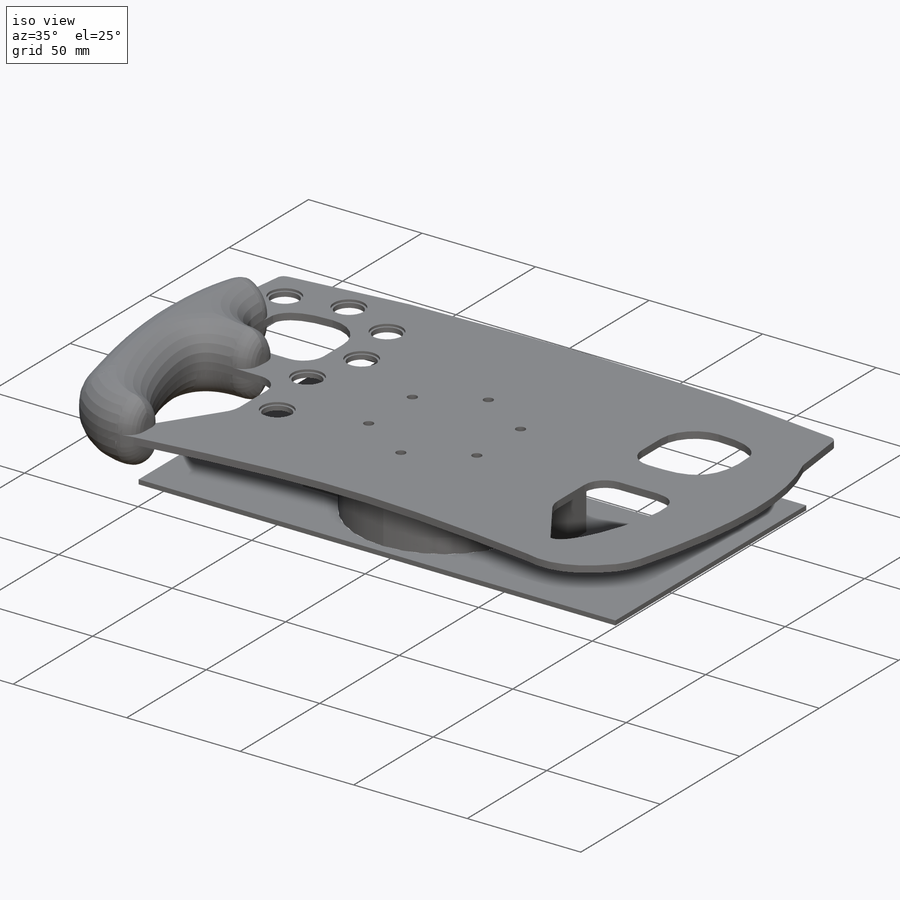
[diagram: iso view]
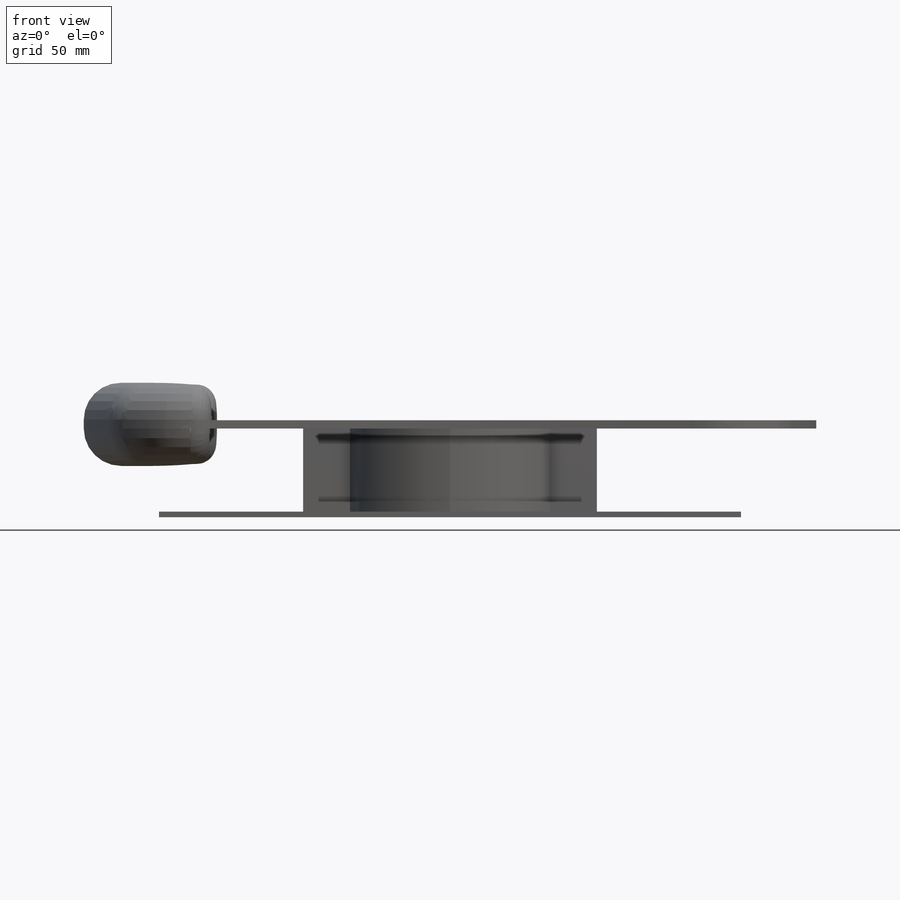
[diagram: front view]
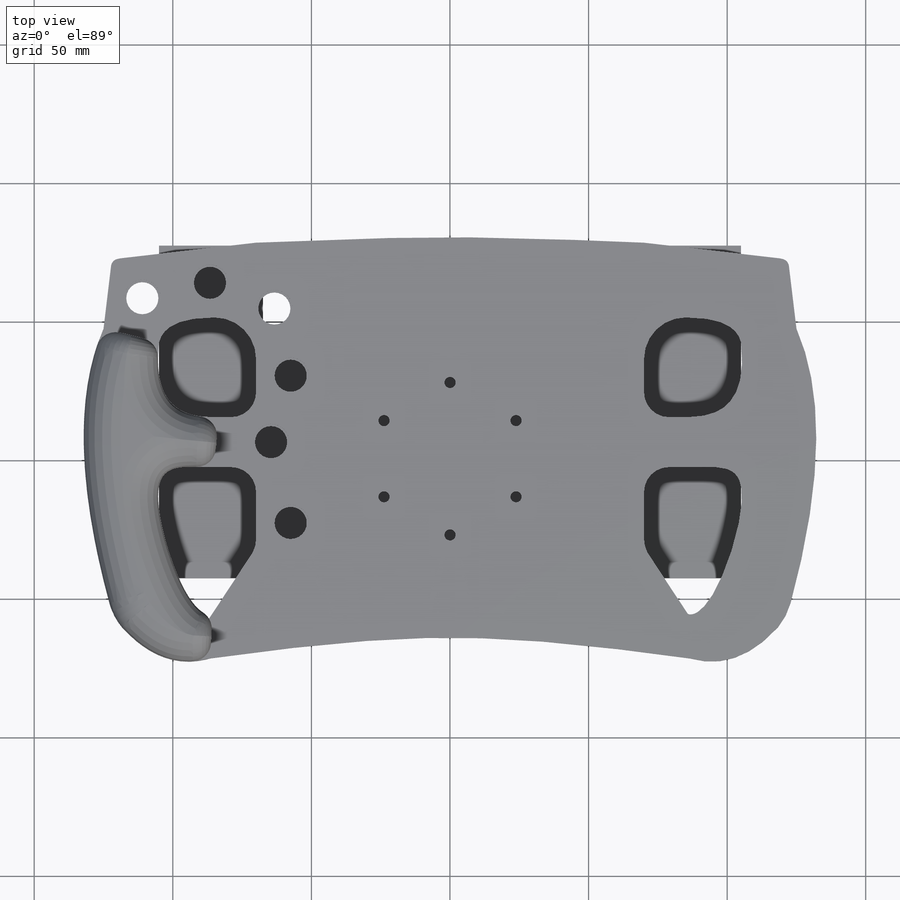
[diagram: top view]
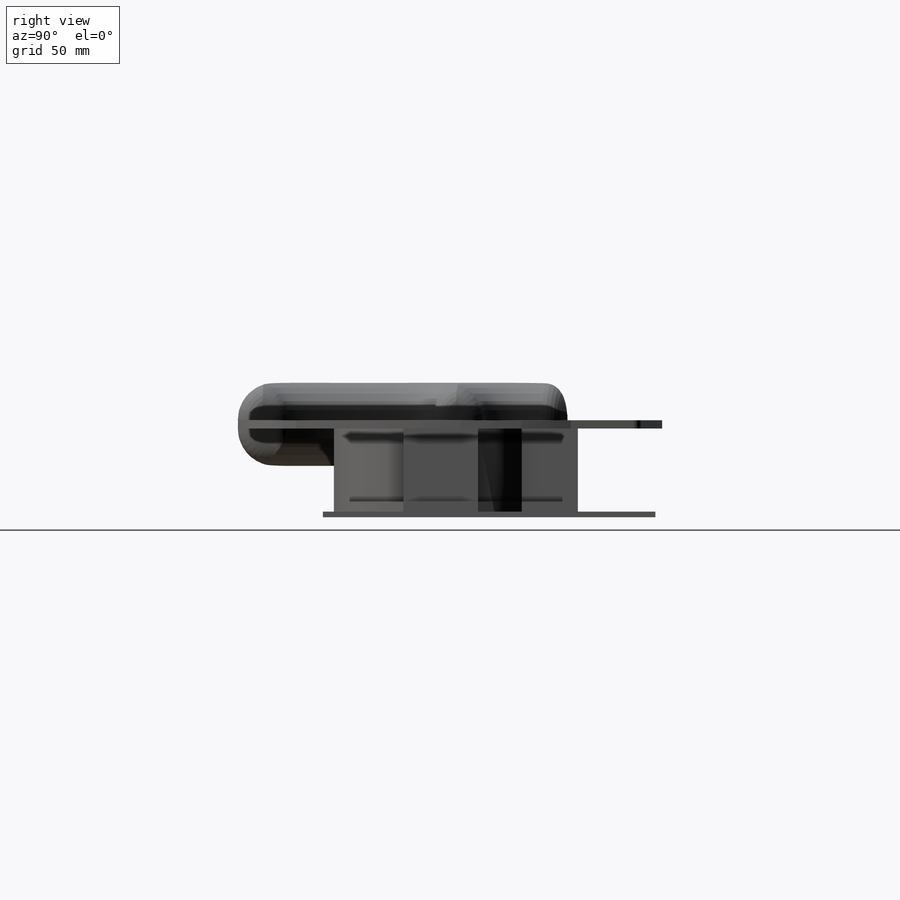
[diagram: right view]
SOLIDWORKS PART (.sldprt)
format: sldprt  version: not decoded by parser v0  size: 1,092,608 bytes
history: native  units: mm
features: sketch x11, extrude x5, fillet x5, cut_extrude x3, material x1 (+13 scaffold rows collapsed)
feature tree (38):
  scaffold x13  (default folders/planes/origin — collapsed)
  material  "Material <not specified>"
  sketch  "Sketch1"  dims[c1.D5=77.0mm c1.D1=27.0mm c1.D2=~99.463235mm c1.D3=27.0mm c2.D2=106.0mm c2.D3=53.0mm c2.D4=13.5mm c2.D6=49.5mm c2.D7=50.0mm c2.D8=25.0mm c2.D9=22.0mm]
  extrude  "Boss-Extrude1"  Depth=30mm
  sketch  "Sketch2"  dims[c1.D5=38.5mm c1.D1=210.0mm c1.D2=105.0mm c1.D3=120.0mm c1.D4=42.5mm c2.D5=135.0mm c2.D6=37.5mm c2.D7=40.0mm]
  extrude  "Boss-Extrude2"  Depth=2mm
  sketch  "Sketch3"  dims[D3=4.0mm D1=27.5mm D2=0.0mm D4=6.0]
  cut_extrude  "Cut-Extrude1"  Depth=2mm
  sketch  "Sketch4"  dims[c1.D19=15.0mm c1.D25=9.0mm c1.D30=9.0mm c2.D25=9.0mm c2.D32=9.0mm c2.D49=~5.831772mm c2.D60=5.25mm c2.D62=~141.397225mm c2.D1=70.0mm c2.D2=15.0mm c2.D3=36.0mm c2.D4=35.0mm c2.D5=18.0mm c2.D6=29.0mm c2.D7=70.0mm c2.D8=29.0mm c3.D8=90.0deg c4.D8=38.0mm c4.D9=25.0mm c4.D10=16.5mm c4.D11=52.0mm c4.D12=6.0mm c4.D13=70.0mm c4.D14=25.0mm c4.D15=3.0mm c4.D16=78.0mm c4.D17=15.0mm c4.D18=15.0mm c4.D20=9.0mm c4.D21=2.25mm c4.D22=~2.479391mm c4.D23=9.0mm c4.D24=9.0mm c4.D26=4.5mm c4.D27=13.0mm c4.D28=29.0mm c4.D29=27.0mm c5.D23=9.0mm c5.D24=9.0mm c5.D26=4.5mm c5.D27=13.0mm c5.D28=29.0mm c5.D30=9.0mm c5.D31=9.0mm c5.D33=6.0mm c5.D34=14.0mm c5.D35=27.0mm c5.D36=5.5mm c5.D37=23.0mm c5.D38=28.0mm c5.D39=~36.757285mm c6.D38=28.0mm c6.D39=20.0mm c6.D40=46.0mm c6.D41=13.0mm c6.D42=54.0mm c6.D43=8.0mm c6.D44=0.0mm c6.D45=~7.407964mm c6.D46=0.0mm c6.D47=~0.637161mm c7.D45=1.5mm c7.D47=3.0mm c7.D48=3.0mm c8.D47=3.0mm c8.D48=3.0mm c8.D49=104.0mm c8.D50=36.25mm c8.D51=15.875mm c8.D52=3.5mm c8.D53=15.0mm c8.D54=5.5mm c8.D55=19.0mm c8.D56=5.0mm c8.D57=5.0mm c8.D58=3.0mm c8.D59=3.0mm c9.D58=3.0mm c9.D60=~2.963289mm c10.D58=3.0mm c10.D59=3.0mm c10.D60=~4.807388mm c10.D61=81.0mm c10.D63=70.0mm c10.D64=12.0mm c10.D65=4.5mm c10.D66=86.5mm c10.D35=~166.084568deg]
  extrude  "Boss-Extrude3"  Depth=3mm
  sketch  "Sketch6"  dims[c1.D2=11.6mm c1.D3=11.6mm c1.D4=11.6mm c1.D5=11.6mm c1.D6=11.6mm c1.D18=11.6mm c1.D1=15.0mm c1.D7=16.0mm c1.D8=6.0mm c1.D9=25.0mm c1.D10=25.0mm c1.D11=25.0mm c1.D12=25.0mm c1.D13=10.0mm c2.D12=17.0mm c2.D13=17.0mm c2.D14=25.0mm c2.D15=~25.281454mm c2.D16=~26.486349mm c3.D15=25.0mm c3.D10=23.5mm c3.D16=~23.260398mm c4.D10=12.5mm c4.D16=30.0mm c4.D17=12.5mm]
  cut_extrude  "Cut-Extrude2"  Depth=5mm
  sketch  "Sketch7"  dims[D1=17.4mm D2=17.4mm D3=17.4mm D4=17.4mm D5=17.4mm D6=17.4mm]
  sketch  "Sketch8"  dims[D1=13.3mm D2=13.3mm D3=13.3mm D4=13.3mm D5=13.3mm D6=13.3mm]
  cut_extrude  "Cut-Extrude3"  Depth=1mm
  sketch  "Sketch9"
  sketch  "Sketch10"  dims[D1=0.0mm]
  extrude  "Boss-Extrude4"  Depth=13.5mm
  fillet  "Fillet2"  Radius=13.29mm
  fillet  "Fillet3"  Radius=7mm
  fillet  "Fillet4"  Radius=7mm
  sketch  "Sketch11"  dims[D1=0.0mm]
  extrude  "Boss-Extrude5"  Depth=13.5mm
  fillet  "Fillet5"  Radius=13.52mm
  fillet  "Fillet8"  Radius=7mm
  sketch  "Sketch12"
decode coverage: 22 of 24 modeling features carry decoded parameters
note: ~ marks probable driven/reference dimensions
note: suppression state not decoded; provenance and decode notes live in map.json
